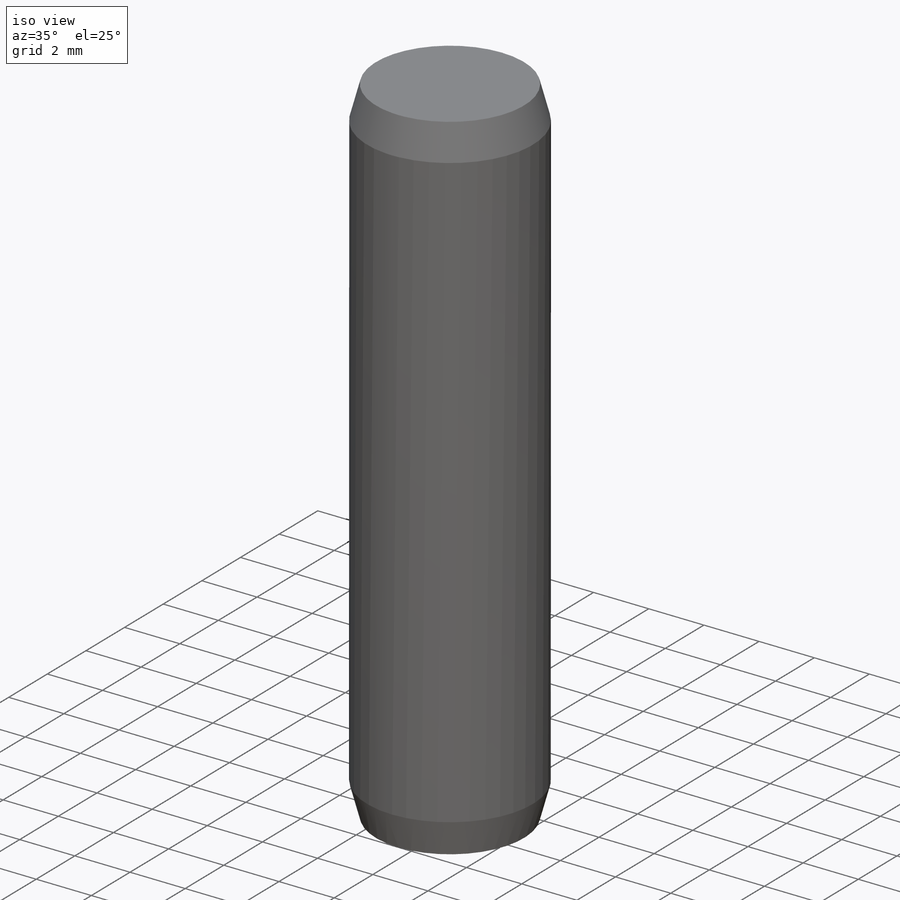
[diagram: iso view]
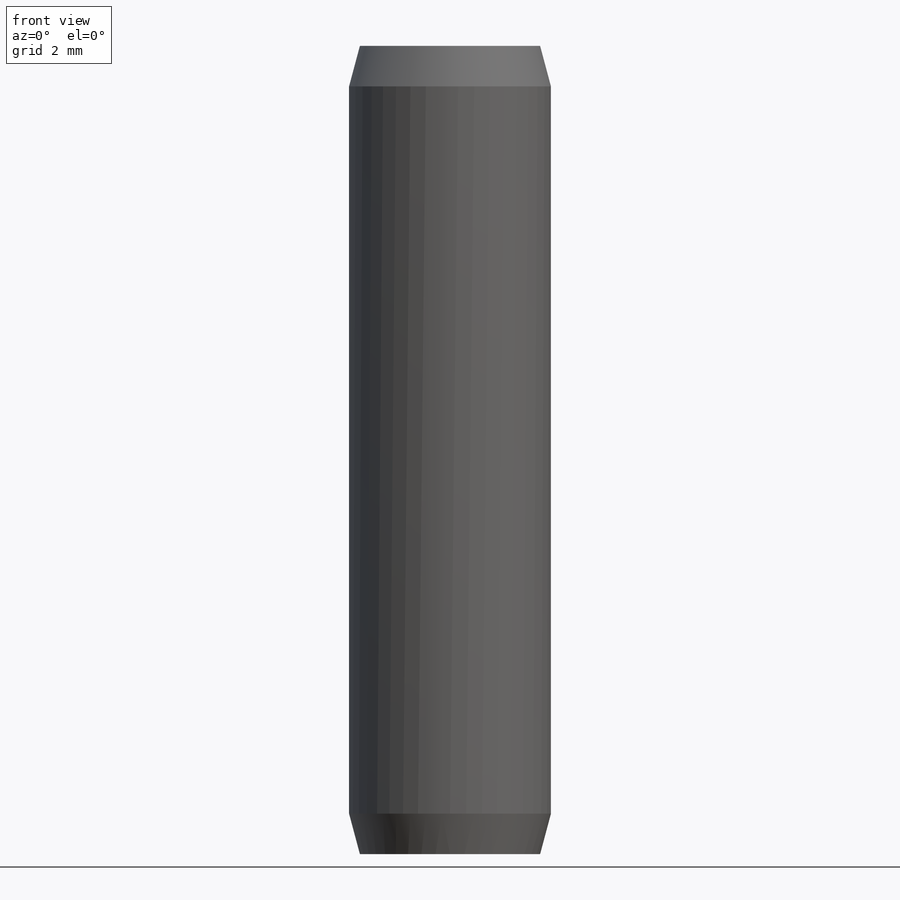
[diagram: front view]
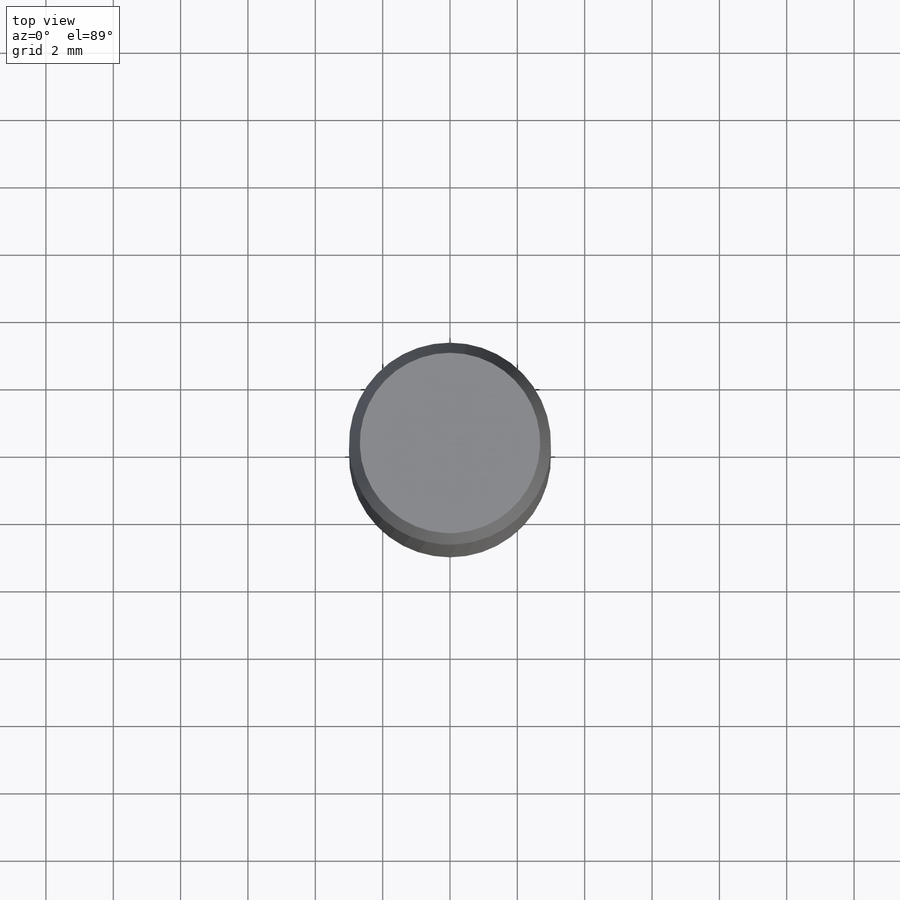
[diagram: top view]
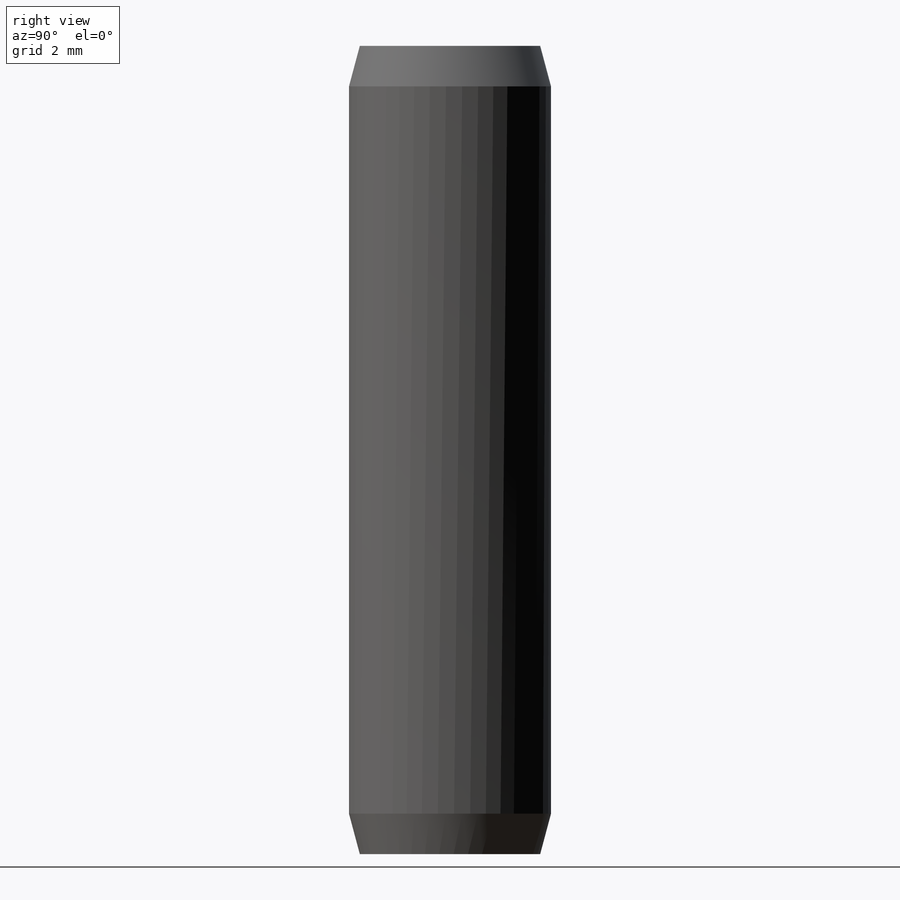
[diagram: right view]
SOLIDWORKS PART (.sldprt)
format: sldprt  version: not decoded by parser v0  size: 204,288 bytes
history: native  units: mm
features: cut_revolve x6, revolve x4, plane x3, chamfer x3, sketch x2, material x1 (+10 scaffold rows collapsed)
feature tree (29):
  scaffold x10  (default folders/planes/origin — collapsed)
  material  "Материал <не указан>"
  plane  "Спереди"
  plane  "Сверху"
  plane  "Справа"
  sketch  "Ske"  dims[d=6.0mm l=18.0mm]
  revolve  "Base-Rev"  Angle=360deg N1=360deg
  sketch  "Ske2"  dims[c1.R=~1.101667mm c2.R=6.0mm c2.a=0.12mm c3.a=0.8mm c3.d=1.0mm]
  cut_revolve  "Cut-Rev"  [1 undecoded]
  revolve  "N5"  [1 undecoded]
  chamfer  "Chamfer2"  Distance=1.2mm c=1.2mm
  revolve  "N5"  [1 undecoded]
  chamfer  "Chamfer1"  [1 undecoded]
  revolve  "N2"  [1 undecoded]
  cut_revolve  "#swsysprm#"  Angle=0deg SolidworksEditDefinition=0deg
  cut_revolve  "PartNumberID"  [1 undecoded]
  cut_revolve  "ConfigurationName"  CopiedFlag=0  [1 undecoded]
  chamfer  "SolidworksEditDefinition"  [1 undecoded]
  cut_revolve  "PartNumberID"  [1 undecoded]
  cut_revolve  "ConfigurationName"  CopiedFlag=0 N4=1mm  [1 undecoded]
decode coverage: 7 of 15 modeling features carry decoded parameters
note: ~ marks probable driven/reference dimensions
note: 10 parameter values undecoded
summary: no parameter record found for 10 features
note: suppression state not decoded; provenance and decode notes live in map.json
